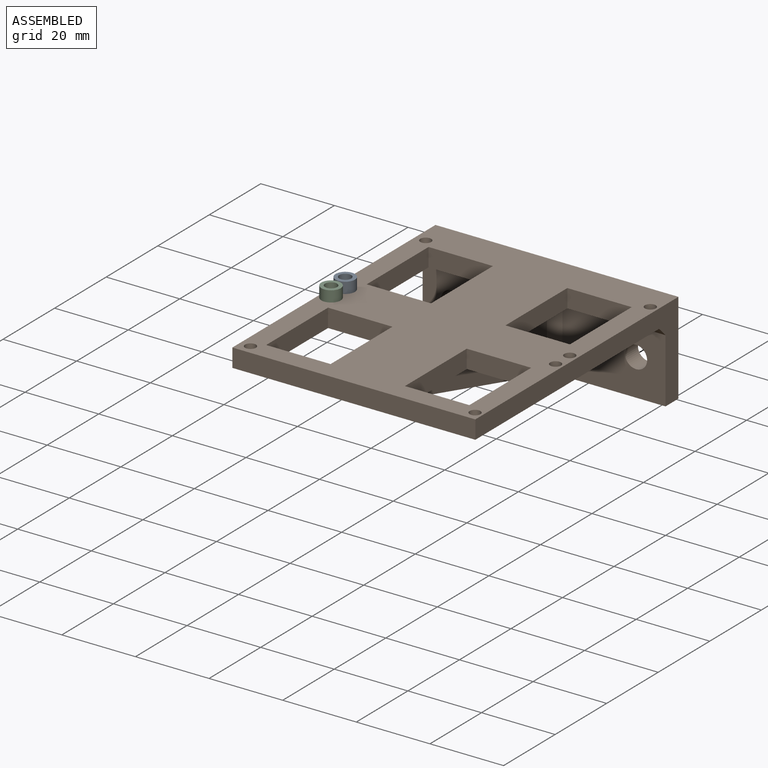
[diagram: assembled view]
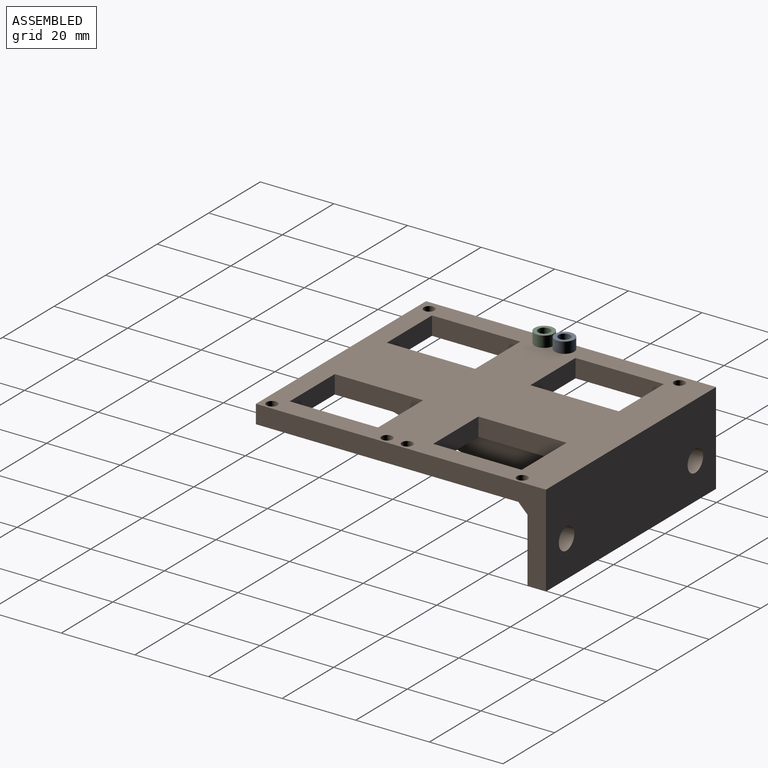
[diagram: assembled view, second angle]
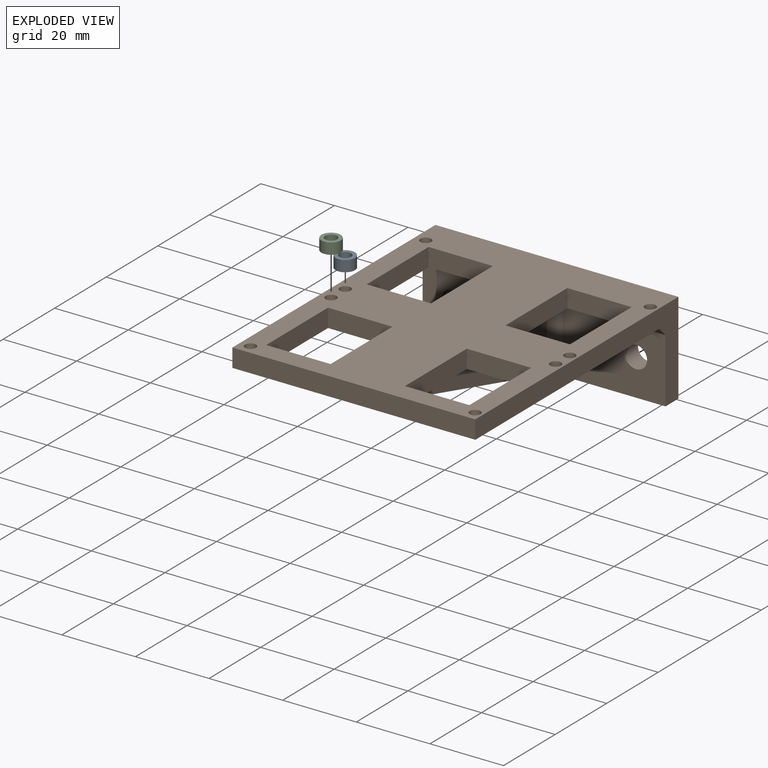
[diagram: exploded view]
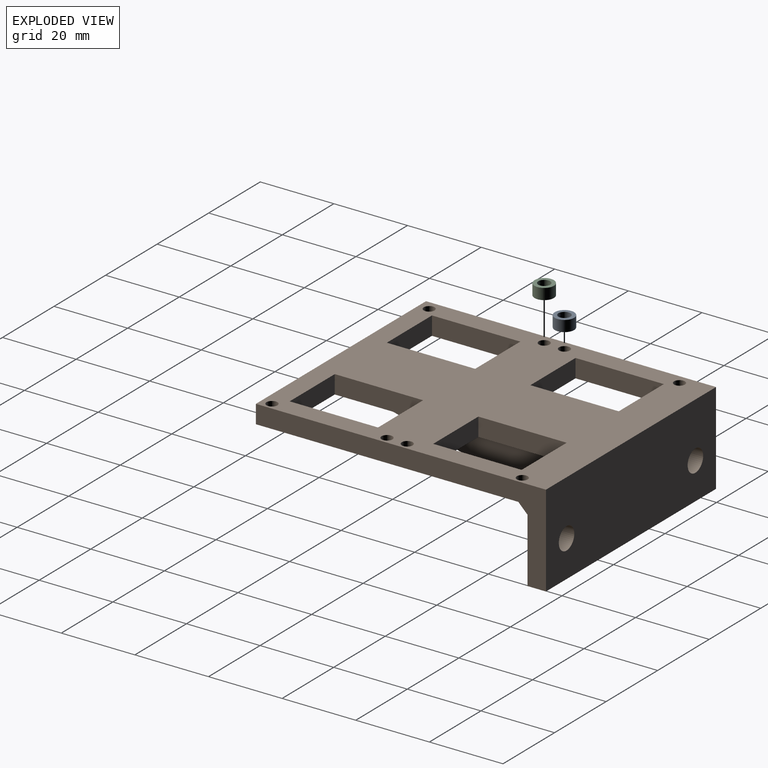
[diagram: exploded view, second angle]
ASSEMBLY  parts=3 mates=2
PART A: 4 faces, bbox 5.3x5.3x3 mm
  f0: cylinder r=1.62mm len=3.25mm, axis (0,0,-1), area 30.6mm2, adj f2,f3
  f1: cylinder r=2.62mm len=5.25mm, axis (0,0,-1), area 49.5mm2, adj f2,f3
  f2: plane 5.25x5.25mm, normal (0,0,1), area 13.4mm2, adj f0,f1
  f3: plane 5.25x5.25mm, normal (0,0,-1), area 13.4mm2, adj f0,f1
PART B: 48 faces, bbox 66x78.8x25 mm
  f0: plane 71.3x28mm, normal (0,0,-1), area 1131.3mm2, adj f8,f10,f18,f19,f23,f24,f25,f27
  f1: plane 71.3x28mm, normal (0,0,-1), area 1131.3mm2, adj f4,f10,f14,f15,f26,f29,f30,f31
  f2: plane 78.8x66mm, normal (0,0,1), area 3466.1mm2, adj f4,f8,f9,f10,f23,f24,f25,f26
  f3: plane 66x17.5mm, normal (0,-1,0), area 923.7mm2, adj f4,f5,f6,f7,f8,f11,f14,f17
  f4: plane 78.8x25mm, normal (-1,0,0), area 497.1mm2, adj f1,f2,f3,f5,f9,f10,f14
  f5: plane 66x5mm, normal (0,0,-1), area 330mm2, adj f3,f4,f8,f9
  f6: cylinder r=3mm len=6mm, axis (0,1,0), area 94.2mm2, adj f3,f9
  f7: cylinder r=3mm len=6mm, axis (0,1,0), area 94.2mm2, adj f3,f9
  f8: plane 78.8x25mm, normal (1,0,0), area 497.1mm2, adj f0,f2,f3,f5,f9,f10,f19
  f9: plane 66x25mm, normal (0,1,0), area 1593.5mm2, adj f2,f4,f5,f6,f7,f8
  f10: plane 66x5mm, normal (0,-1,0), area 330mm2, adj f0,f1,f2,f4,f8,f11
  f11: plane 73.8x19.97mm, normal (0,-0.26,-0.97), area 412.7mm2, adj f3,f10,f12,f13,f15,f17,f18,f21
  f12: plane 62.06x16.8mm, normal (1,0,0), area 521.3mm2, adj f11,f18,f21
  f13: plane 62.06x16.8mm, normal (-1,0,0), area 521.3mm2, adj f11,f15,f17
  f14: plane 28x2.5mm, normal (0,-0.71,-0.71), area 99mm2, adj f1,f3,f4,f16,f28
  f15: plane 71.3x2.5mm, normal (-0.71,0,-0.71), area 235.8mm2, adj f1,f11,f13,f16
  f16: plane 2.5x2.5mm, normal (-0.58,-0.58,-0.58), area 5.4mm2, adj f14,f15,f17
  f17: plane 17.47x2.5mm, normal (-0.71,-0.71,0), area 60.6mm2, adj f3,f11,f13,f16
  f18: plane 71.3x2.5mm, normal (0.71,0,-0.71), area 235.8mm2, adj f0,f11,f12,f20
  f19: plane 28x2.5mm, normal (0,-0.71,-0.71), area 99mm2, adj f0,f3,f8,f20,f22
  f20: plane 2.5x2.5mm, normal (0.58,-0.58,-0.58), area 5.4mm2, adj f18,f19,f21
  f21: plane 17.47x2.5mm, normal (0.71,-0.71,0), area 60.6mm2, adj f3,f11,f12,f20
  f22: plane 2.84x1.08mm, normal (0,0,1), area 2.3mm2, adj f19,f23
  f23: cylinder r=1.47mm len=5mm, axis (0,0,-1), area 46.3mm2, adj f0,f2,f22
  f24: cylinder r=1.47mm len=5mm, axis (0,0,-1), area 46.3mm2, adj f0,f2
  f25: cylinder r=1.47mm len=5mm, axis (0,0,-1), area 46.3mm2, adj f0,f2
  f26: cylinder r=1.47mm len=5mm, axis (0,0,-1), area 46.3mm2, adj f1,f2
  f27: cylinder r=1.47mm len=5mm, axis (0,0,-1), area 46.3mm2, adj f0,f2
  f28: plane 2.84x1.08mm, normal (0,0,1), area 2.3mm2, adj f14,f29
  f29: cylinder r=1.47mm len=5mm, axis (0,0,-1), area 46.3mm2, adj f1,f2,f28
  f30: cylinder r=1.47mm len=5mm, axis (0,0,-1), area 46.3mm2, adj f1,f2
  f31: cylinder r=1.47mm len=5mm, axis (0,0,-1), area 46.3mm2, adj f1,f2
  f32: plane 17.5x5mm, normal (0,-1,0), area 87.5mm2, adj f1,f2,f33,f35
  f33: plane 24x5mm, normal (1,0,0), area 120mm2, adj f1,f2,f32,f34
  f34: plane 17.5x5mm, normal (0,1,0), area 87.5mm2, adj f1,f2,f33,f35
  f35: plane 24x5mm, normal (-1,0,0), area 120mm2, adj f1,f2,f32,f34
  f36: plane 24x5mm, normal (-1,0,0), area 120mm2, adj f0,f2,f37,f39
  f37: plane 17.5x5mm, normal (0,-1,0), area 87.5mm2, adj f0,f2,f36,f38
  f38: plane 24x5mm, normal (1,0,0), area 120mm2, adj f0,f2,f37,f39
  f39: plane 17.5x5mm, normal (0,1,0), area 87.5mm2, adj f0,f2,f36,f38
  f40: plane 17.5x5mm, normal (0,1,0), area 87.5mm2, adj f0,f2,f41,f43
  f41: plane 24x5mm, normal (-1,0,0), area 120mm2, adj f0,f2,f40,f42
  f42: plane 17.5x5mm, normal (0,-1,0), area 87.5mm2, adj f0,f2,f41,f43
  f43: plane 24x5mm, normal (1,0,0), area 120mm2, adj f0,f2,f40,f42
  f44: plane 24x5mm, normal (1,0,0), area 120mm2, adj f1,f2,f45,f47
  f45: plane 17.5x5mm, normal (0,1,0), area 87.5mm2, adj f1,f2,f44,f46
  f46: plane 24x5mm, normal (-1,0,0), area 120mm2, adj f1,f2,f45,f47
  f47: plane 17.5x5mm, normal (0,-1,0), area 87.5mm2, adj f1,f2,f44,f46
PART C: same geometry as A
PLACE A rot(axis=(1,0,0),180deg) t=(1.23,40.27,-8.29)mm
PLACE B t=(-9.97,17.78,-26.29)mm
PLACE C rot(axis=(1,0,0),180deg) t=(1.23,34.77,-8.29)mm
MATE cylindrical C.f0 <-> B.f31  axis (0,0,1) through (-40.07,-26.87,-11.29)mm
MATE cylindrical A.f0 <-> B.f30  axis (0,0,-1) through (-40.07,-21.37,-11.29)mm
